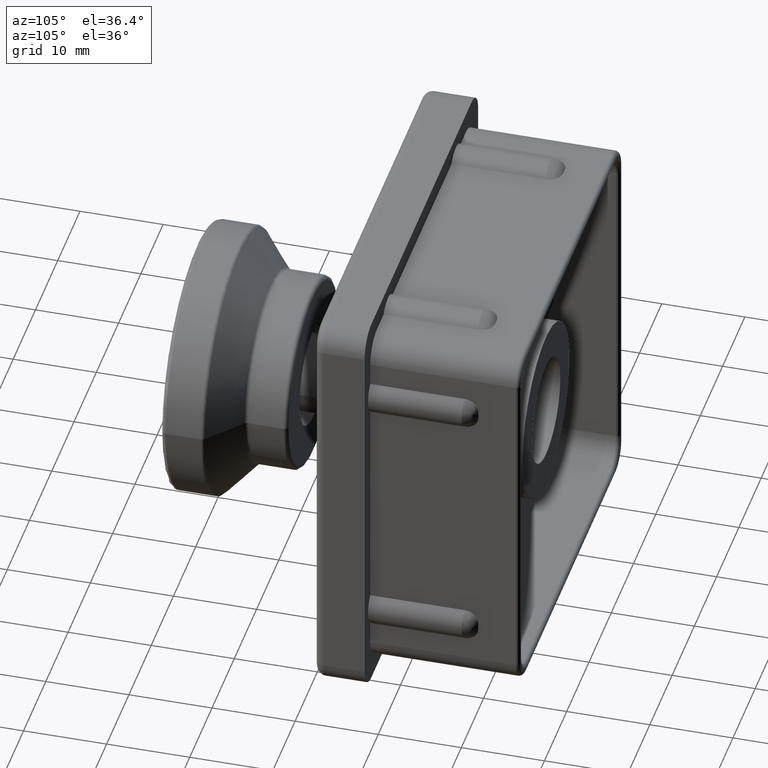
[diagram: clean part render]
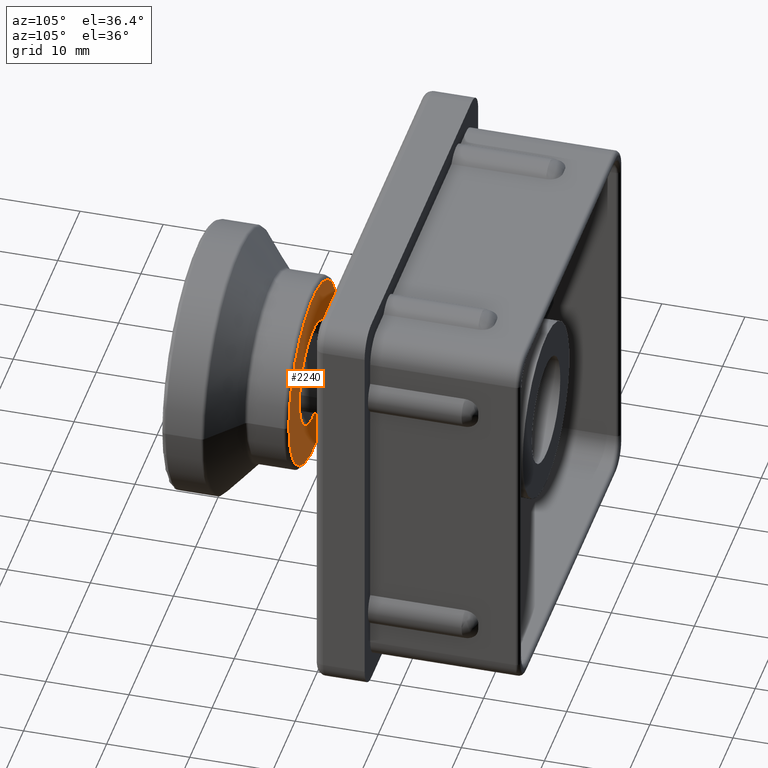
[diagram: same view with one face highlighted and labeled with its STEP entity id]
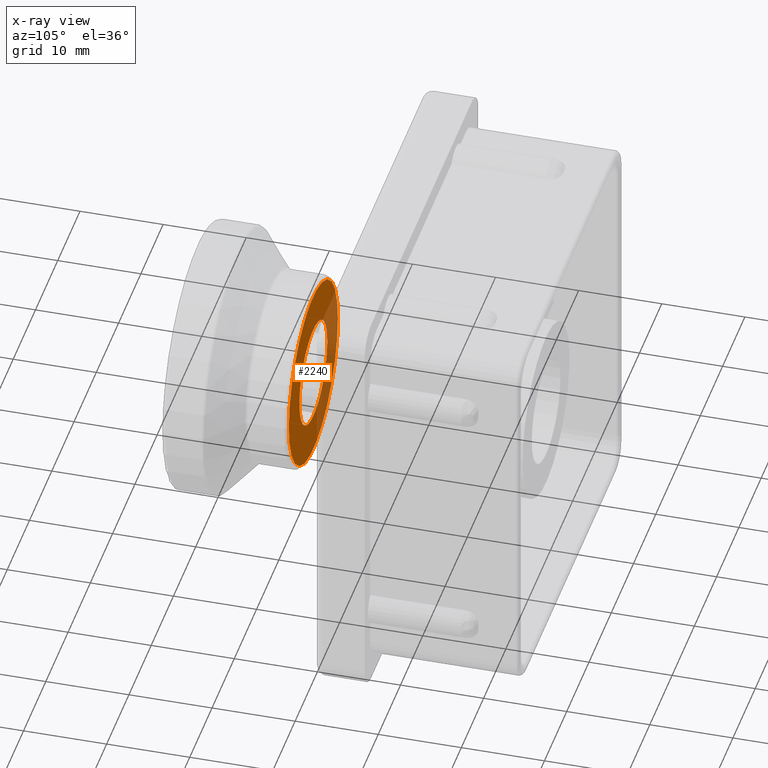
[diagram: x-ray of the same camera — body ghosted, the highlighted face saturated]
A machine part, auxiliary view. The second image highlights one B-rep face of the part: STEP entity #2240.
The next image is the same camera in x-ray: the body ghosted, the highlighted face saturated — about 31% of this face is hidden behind the body in this view.
In plain terms, the highlighted planar face has unit normal (-0, 1, 0).
Its self-contained STEP definition (entity closure, byte-faithful):
#47=FACE_BOUND('',#435,.T.);
#84=CIRCLE('',#2400,11.);
#85=CIRCLE('',#2402,6.25);
#210=PLANE('',#2401);
#288=FACE_OUTER_BOUND('',#434,.T.);
#434=EDGE_LOOP('',(#1606));
#435=EDGE_LOOP('',(#1607));
#999=VERTEX_POINT('',#3589);
#1000=VERTEX_POINT('',#3592);
#1242=EDGE_CURVE('',#999,#999,#84,.T.);
#1243=EDGE_CURVE('',#1000,#1000,#85,.T.);
#1606=ORIENTED_EDGE('',*,*,#1242,.F.);
#1607=ORIENTED_EDGE('',*,*,#1243,.T.);
#2240=ADVANCED_FACE('',(#288,#47),#210,.T.);
#2400=AXIS2_PLACEMENT_3D('',#3590,#2744,#2745);
#2401=AXIS2_PLACEMENT_3D('',#3591,#2746,#2747);
#2402=AXIS2_PLACEMENT_3D('',#3593,#2748,#2749);
#2744=DIRECTION('center_axis',(6.34413156928661E-17,-1.,0.));
#2745=DIRECTION('ref_axis',(-1.,-6.34413156928661E-17,1.22464679914735E-16));
#2746=DIRECTION('center_axis',(-6.34413156928661E-17,1.,0.));
#2747=DIRECTION('ref_axis',(0.,0.,1.));
#2748=DIRECTION('center_axis',(6.34413156928661E-17,-1.,0.));
#2749=DIRECTION('ref_axis',(-1.,0.,0.));
#3589=CARTESIAN_POINT('',(11.,14.,0.));
#3590=CARTESIAN_POINT('Origin',(-8.88178419700125E-16,14.,0.));
#3591=CARTESIAN_POINT('Origin',(11.5,14.,0.));
#3592=CARTESIAN_POINT('',(6.25,14.,-7.65404249467096E-16));
#3593=CARTESIAN_POINT('Origin',(-8.88178419700125E-16,14.,0.));